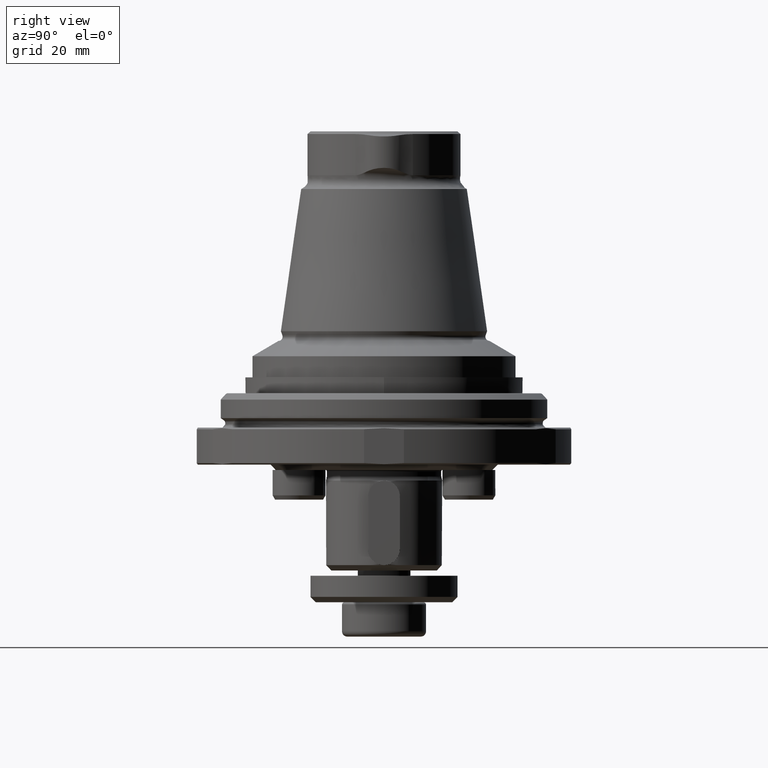
[diagram: clean part render]
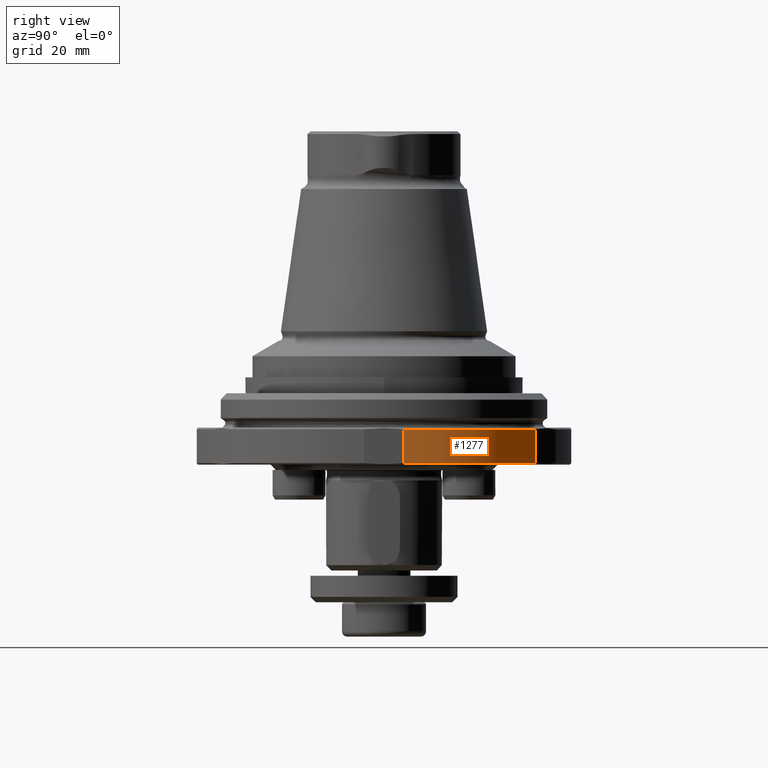
[diagram: same view with one face highlighted and labeled with its STEP entity id]
A machine part, right view. The second image highlights one B-rep face of the part: STEP entity #1277.
In plain terms, the highlighted cylindrical surface (partial cylindrical patch) has radius 35.5 mm, axis along (-0, 0, -1).
Its self-contained STEP definition (entity closure, byte-faithful):
#94=LINE('',#2280,#135);
#95=LINE('',#2290,#136);
#135=VECTOR('',#1777,1000.);
#136=VECTOR('',#1786,1000.);
#447=ORIENTED_EDGE('',*,*,#670,.F.);
#448=ORIENTED_EDGE('',*,*,#666,.T.);
#449=ORIENTED_EDGE('',*,*,#671,.T.);
#450=ORIENTED_EDGE('',*,*,#662,.T.);
#662=EDGE_CURVE('',#799,#798,#94,.T.);
#666=EDGE_CURVE('',#800,#801,#95,.F.);
#670=EDGE_CURVE('',#800,#798,#888,.T.);
#671=EDGE_CURVE('',#801,#799,#889,.T.);
#798=VERTEX_POINT('',#2279);
#799=VERTEX_POINT('',#2281);
#800=VERTEX_POINT('',#2291);
#801=VERTEX_POINT('',#2292);
#888=CIRCLE('',#1446,35.5);
#889=CIRCLE('',#1447,35.5);
#1013=EDGE_LOOP('',(#447,#448,#449,#450));
#1146=FACE_BOUND('',#1013,.T.);
#1198=CYLINDRICAL_SURFACE('',#1445,35.5);
#1277=ADVANCED_FACE('',(#1146),#1198,.T.);
#1445=AXIS2_PLACEMENT_3D('',#2304,#1788,#1789);
#1446=AXIS2_PLACEMENT_3D('',#2305,#1790,#1791);
#1447=AXIS2_PLACEMENT_3D('',#2306,#1792,#1793);
#1777=DIRECTION('',(-5.55111512312578E-17,1.04225259501902E-17,-1.));
#1786=DIRECTION('',(-5.55111512312578E-17,1.04225259501902E-17,-1.));
#1788=DIRECTION('',(-5.55111512312578E-17,1.04225259501902E-17,-1.));
#1789=DIRECTION('',(-1.,0.,5.55111512312578E-17));
#1790=DIRECTION('',(-5.55111512312578E-17,1.04225259501902E-17,-1.));
#1791=DIRECTION('',(-1.,0.,5.55111512312578E-17));
#1792=DIRECTION('',(-5.55111512312578E-17,1.04225259501902E-17,-1.));
#1793=DIRECTION('',(-1.,0.,5.55111512312578E-17));
#2279=CARTESIAN_POINT('',(35.3,3.76297754444536,-7.70000000000001));
#2280=CARTESIAN_POINT('',(35.3,3.76297754444536,-1.00000000000001));
#2281=CARTESIAN_POINT('',(35.3,3.76297754444536,-1.30000000000001));
#2290=CARTESIAN_POINT('',(20.9088341473601,28.689207981368,-1.00000000000001));
#2291=CARTESIAN_POINT('',(20.9088341473601,28.689207981368,-7.70000000000001));
#2292=CARTESIAN_POINT('',(20.9088341473601,28.689207981368,-1.30000000000001));
#2304=CARTESIAN_POINT('',(1.15067213296349E-14,6.77464186762363E-17,-1.00000000000001));
#2305=CARTESIAN_POINT('',(1.11347966163855E-14,1.37577342542511E-16,-7.70000000000001));
#2306=CARTESIAN_POINT('',(1.14900679842656E-14,7.08731764612934E-17,-1.30000000000001));